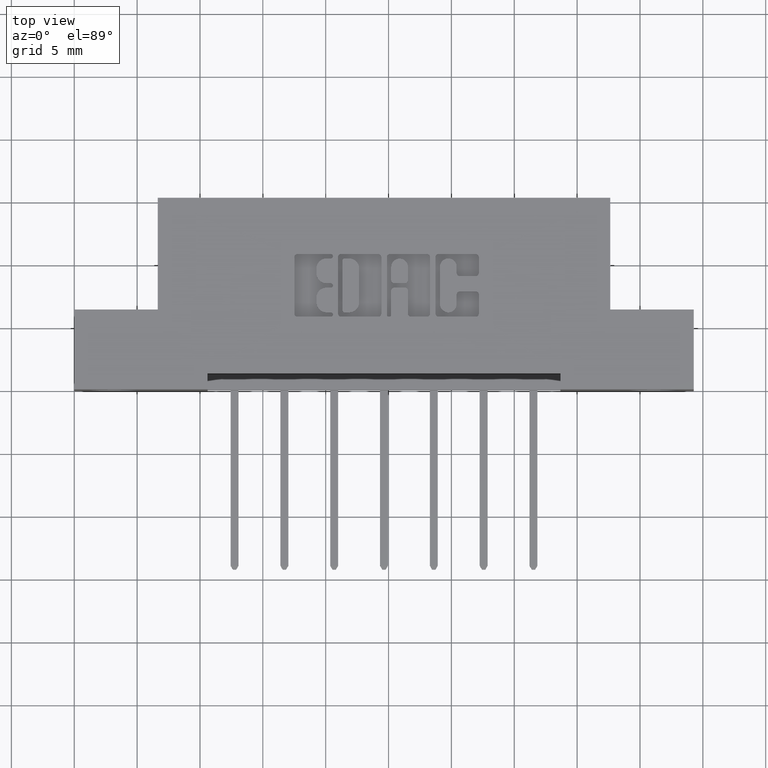
[diagram: clean part render]
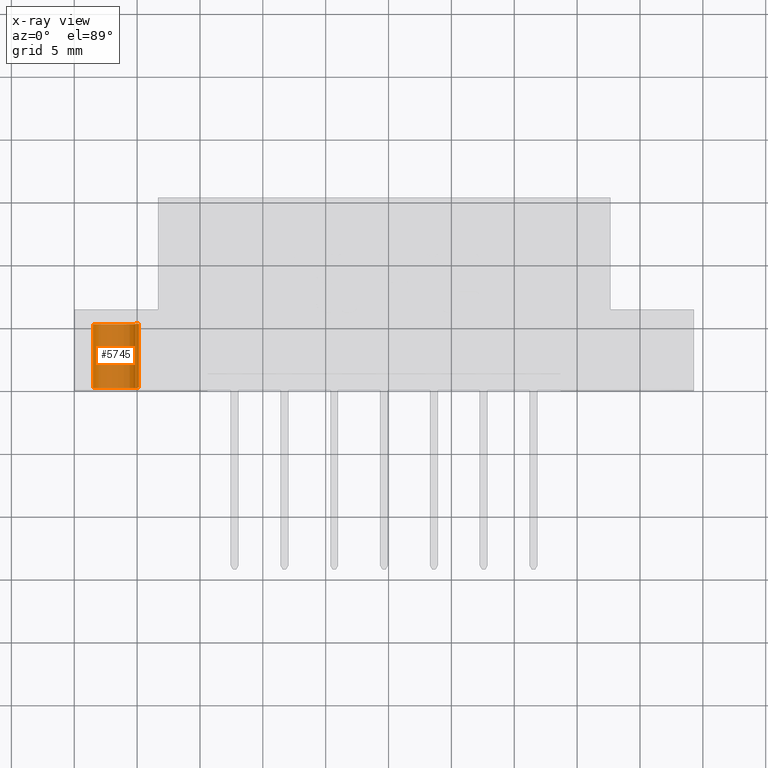
[diagram: x-ray — body ghosted, one internal face saturated and labeled with its STEP entity id]
A machine part, top view, then the same camera in x-ray: the body is ghosted and one INTERNAL B-rep face — a face not visible from any outside direction — is saturated and labeled: STEP entity #5745.
In plain terms, the highlighted cylindrical surface (edge-blend (fillet) strip) has radius 1.9685 mm, axis along (0, 1, -0).
Its self-contained STEP definition (entity closure, byte-faithful):
#384 = CIRCLE ( 'NONE', #6493, 0.07749999999999999900 ) ;
#527 = DIRECTION ( 'NONE',  ( 0.0000000000000000000, 1.000000000000000000, 0.0000000000000000000 ) ) ;
#2134 = CYLINDRICAL_SURFACE ( 'NONE', #9540, 0.07749999999999999900 ) ;
#2521 = VERTEX_POINT ( 'NONE', #8810 ) ;
#2545 = CARTESIAN_POINT ( 'NONE',  ( 0.0000000000000000000, 0.2400000000000000500, 0.0000000000000000000 ) ) ;
#2993 = CIRCLE ( 'NONE', #8119, 0.07749999999999999900 ) ;
#3104 = ORIENTED_EDGE ( 'NONE', *, *, #7120, .F. ) ;
#3503 = DIRECTION ( 'NONE',  ( 0.0000000000000000000, 1.000000000000000000, 0.0000000000000000000 ) ) ;
#3537 = CARTESIAN_POINT ( 'NONE',  ( 9.491012693391986400E-018, 0.2400000000000000500, 0.07749999999999999900 ) ) ;
#3732 = EDGE_LOOP ( 'NONE', ( #4090, #7220, #9730, #3104 ) ) ;
#3805 = EDGE_CURVE ( 'NONE', #5272, #5573, #2993, .T. ) ;
#4090 = ORIENTED_EDGE ( 'NONE', *, *, #3805, .F. ) ;
#4473 = FACE_OUTER_BOUND ( 'NONE', #3732, .T. ) ;
#5258 = CARTESIAN_POINT ( 'NONE',  ( 0.0000000000000000000, 0.04000000000000000100, 0.0000000000000000000 ) ) ;
#5272 = VERTEX_POINT ( 'NONE', #3537 ) ;
#5573 = VERTEX_POINT ( 'NONE', #6984 ) ;
#5745 = ADVANCED_FACE ( 'NONE', ( #4473 ), #2134, .T. ) ;
#6018 = DIRECTION ( 'NONE',  ( 0.0000000000000000000, 0.0000000000000000000, 1.000000000000000000 ) ) ;
#6160 = LINE ( 'NONE', #6259, #7942 ) ;
#6220 = VERTEX_POINT ( 'NONE', #7764 ) ;
#6256 = VECTOR ( 'NONE', #8054, 39.37007874015748100 ) ;
#6259 = CARTESIAN_POINT ( 'NONE',  ( 0.0000000000000000000, 0.2400000000000000500, -0.07749999999999999900 ) ) ;
#6407 = DIRECTION ( 'NONE',  ( 0.0000000000000000000, 0.0000000000000000000, -1.000000000000000000 ) ) ;
#6493 = AXIS2_PLACEMENT_3D ( 'NONE', #5258, #527, #6018 ) ;
#6984 = CARTESIAN_POINT ( 'NONE',  ( 0.0000000000000000000, 0.2400000000000000500, -0.07749999999999999900 ) ) ;
#7120 = EDGE_CURVE ( 'NONE', #5573, #6220, #6160, .T. ) ;
#7220 = ORIENTED_EDGE ( 'NONE', *, *, #8641, .T. ) ;
#7293 = CARTESIAN_POINT ( 'NONE',  ( 9.491012693391986400E-018, 0.2400000000000000500, 0.07749999999999999900 ) ) ;
#7558 = EDGE_CURVE ( 'NONE', #2521, #6220, #384, .T. ) ;
#7764 = CARTESIAN_POINT ( 'NONE',  ( 0.0000000000000000000, 0.04000000000000000100, -0.07749999999999999900 ) ) ;
#7942 = VECTOR ( 'NONE', #9328, 39.37007874015748100 ) ;
#8054 = DIRECTION ( 'NONE',  ( -0.0000000000000000000, -1.000000000000000000, -0.0000000000000000000 ) ) ;
#8110 = CARTESIAN_POINT ( 'NONE',  ( 0.0000000000000000000, 0.2400000000000000500, 0.0000000000000000000 ) ) ;
#8119 = AXIS2_PLACEMENT_3D ( 'NONE', #8110, #3503, #8883 ) ;
#8275 = LINE ( 'NONE', #7293, #6256 ) ;
#8641 = EDGE_CURVE ( 'NONE', #5272, #2521, #8275, .T. ) ;
#8675 = DIRECTION ( 'NONE',  ( -0.0000000000000000000, -1.000000000000000000, -0.0000000000000000000 ) ) ;
#8810 = CARTESIAN_POINT ( 'NONE',  ( 9.491012693391986400E-018, 0.04000000000000000100, 0.07749999999999999900 ) ) ;
#8883 = DIRECTION ( 'NONE',  ( 0.0000000000000000000, 0.0000000000000000000, 1.000000000000000000 ) ) ;
#9328 = DIRECTION ( 'NONE',  ( -0.0000000000000000000, -1.000000000000000000, -0.0000000000000000000 ) ) ;
#9540 = AXIS2_PLACEMENT_3D ( 'NONE', #2545, #8675, #6407 ) ;
#9730 = ORIENTED_EDGE ( 'NONE', *, *, #7558, .T. ) ;